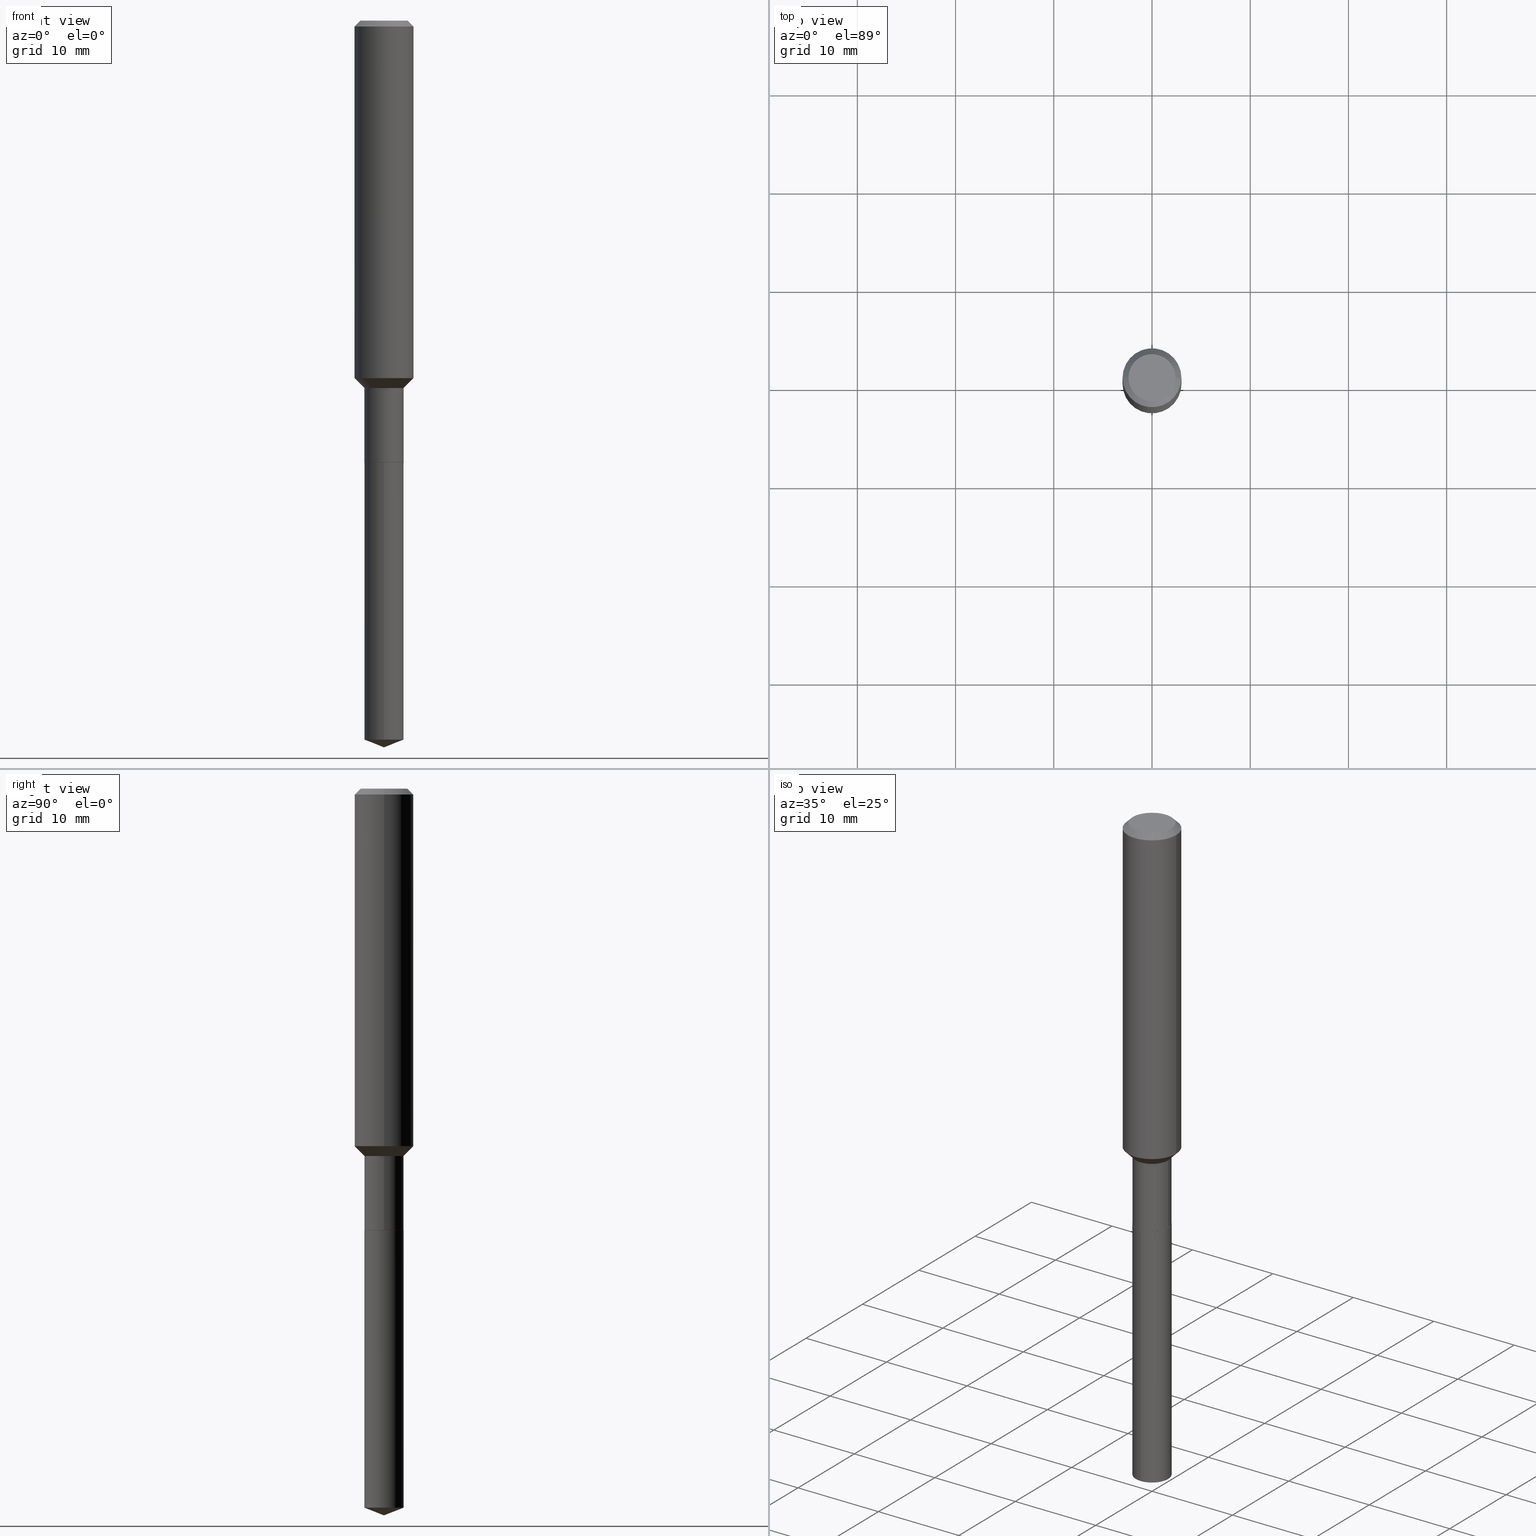
[diagram: canonical four-view strip — front | top / right | iso, engineering-drawing reading convention]
A machine part, canonical four-view strip (front | top / right | iso — engineering-drawing reading convention). The complete STEP part file that produces these views, byte-faithful:
ISO-10303-21;
HEADER;
FILE_DESCRIPTION (( 'STEP AP203' ),
    '1' );
FILE_NAME ('66513.STEP',
    '2024-04-25T00:03:08',
    ( '' ),
    ( '' ),
    'SwSTEP 2.0',
    'SolidWorks 2023',
    '' );
FILE_SCHEMA (( 'CONFIG_CONTROL_DESIGN' ));
ENDSEC;

DATA;
#1 = APPROVAL_PERSON_ORGANIZATION ( #406, #435, #297 ) ;
#2 = VERTEX_POINT ( 'NONE', #315 ) ;
#3 = LINE ( 'NONE', #5, #242 ) ;
#4 = EDGE_LOOP ( 'NONE', ( #385, #423, #289 ) ) ;
#5 = CARTESIAN_POINT ( 'NONE',  ( 0.1181000000000000799, -8.246878922347486570E-16, 5.758764772215004644E-30 ) ) ;
#6 = VERTEX_POINT ( 'NONE', #11 ) ;
#7 = ORIENTED_EDGE ( 'NONE', *, *, #130, .F. ) ;
#8 = AXIS2_PLACEMENT_3D ( 'NONE', #290, #367, #366 ) ;
#9 = VECTOR ( 'NONE', #308, 39.37007874015748143 ) ;
#10 = DIRECTION ( 'NONE',  ( 1.000000000000000000, -6.982962677686270655E-15, 0.000000000000000000 ) ) ;
#11 = CARTESIAN_POINT ( 'NONE',  ( -5.499083108677227426E-16, -0.07875000000001002032, -2.881979550045322025 ) ) ;
#12 = CARTESIAN_POINT ( 'NONE',  ( 4.331658896395732410E-29, -6.184460895492863090E-15, -1.771299999999999653 ) ) ;
#13 = PERSON_AND_ORGANIZATION ( #257, #213 ) ;
#14 = FACE_OUTER_BOUND ( 'NONE', #298, .T. ) ;
#15 = FACE_OUTER_BOUND ( 'NONE', #4, .T. ) ;
#16 = APPROVAL_PERSON_ORGANIZATION ( #206, #220, #357 ) ;
#17 = FACE_OUTER_BOUND ( 'NONE', #81, .T. ) ;
#18 = DIMENSIONAL_EXPONENTS ( 1.000000000000000000, 0.000000000000000000, 0.000000000000000000, 0.000000000000000000, 0.000000000000000000, 0.000000000000000000, 0.000000000000000000 ) ;
#19 = AXIS2_PLACEMENT_3D ( 'NONE', #82, #240, #388 ) ;
#20 = ORIENTED_EDGE ( 'NONE', *, *, #480, .T. ) ;
#21 = FACE_OUTER_BOUND ( 'NONE', #188, .T. ) ;
#22 = EDGE_CURVE ( 'NONE', #84, #65, #160, .T. ) ;
#23 = CARTESIAN_POINT ( 'NONE',  ( -0.1180999999999999966, 7.422191030112725094E-16, -0.02362000000000014435 ) ) ;
#24 = PRODUCT_RELATED_PRODUCT_CATEGORY ( 'detail', '', ( #413 ) ) ;
#25 =( CONVERSION_BASED_UNIT ( 'INCH', #217 ) LENGTH_UNIT ( ) NAMED_UNIT ( #18 ) );
#26 = CARTESIAN_POINT ( 'NONE',  ( 0.1180999999999999966, -9.071566814582237199E-16, -0.02362000000000014435 ) ) ;
#27 = AXIS2_PLACEMENT_3D ( 'NONE', #473, #318, #391 ) ;
#28 = DIRECTION ( 'NONE',  ( -6.982962677686264344E-15, -1.000000000000000000, 3.469013325287953293E-15 ) ) ;
#29 = EDGE_LOOP ( 'NONE', ( #345, #402, #464, #7 ) ) ;
#30 = DIRECTION ( 'NONE',  ( -2.445468806185136597E-29, 3.491481338843145583E-15, 1.000000000000000000 ) ) ;
#31 = VERTEX_POINT ( 'NONE', #387 ) ;
#32 = CARTESIAN_POINT ( 'NONE',  ( 0.07874999999999997280, -5.499083108677933457E-16, 3.839989210939298316E-30 ) ) ;
#33 = ADVANCED_FACE ( 'NONE', ( #46 ), #155, .F. ) ;
#34 = EDGE_LOOP ( 'NONE', ( #365, #376, #404, #58 ) ) ;
#35 = CARTESIAN_POINT ( 'NONE',  ( -0.1180999999999999966, -1.703817089993642645E-15, -0.02362000000000014435 ) ) ;
#36 = CLOSED_SHELL ( 'NONE', ( #157, #39, #463, #449, #119, #171, #194, #92, #63, #254, #33, #429 ) ) ;
#37 = VERTEX_POINT ( 'NONE', #124 ) ;
#38 = CARTESIAN_POINT ( 'NONE',  ( 4.330436161992639608E-29, -6.182715154823442375E-15, -1.770799999999999930 ) ) ;
#39 = ADVANCED_FACE ( 'NONE', ( #279 ), #379, .T. ) ;
#40 = DIRECTION ( 'NONE',  ( -2.445392125264201489E-29, 3.491591150286331850E-15, 1.000000000000000000 ) ) ;
#41 = SECURITY_CLASSIFICATION_LEVEL ( 'unclassified' ) ;
#42 = CC_DESIGN_PERSON_AND_ORGANIZATION_ASSIGNMENT ( #451, #51, ( #169 ) ) ;
#43 = ORIENTED_EDGE ( 'NONE', *, *, #443, .F. ) ;
#44 = CARTESIAN_POINT ( 'NONE',  ( -8.915171743640279207E-28, 1.272934080034351403E-13, 36.45707874015747763 ) ) ;
#45 = COORDINATED_UNIVERSAL_TIME_OFFSET ( 5, 0, .BEHIND. ) ;
#46 = FACE_OUTER_BOUND ( 'NONE', #267, .T. ) ;
#47 = LOCAL_TIME ( 20, 3, 8.000000000000000000, #122 ) ;
#48 = DIRECTION ( 'NONE',  ( -2.445468806185136597E-29, 3.491481338843145583E-15, 1.000000000000000000 ) ) ;
#49 = EDGE_CURVE ( 'NONE', #411, #6, #241, .T. ) ;
#50 = CARTESIAN_POINT ( 'NONE',  ( -0.09447999999999998066, 7.009847083995354710E-16, -1.928573779297727792E-17 ) ) ;
#51 = PERSON_AND_ORGANIZATION_ROLE ( 'classification_officer' ) ;
#52 = CARTESIAN_POINT ( 'NONE',  ( 4.716267017698007905E-46, -6.733579360998555036E-32, -1.928573779297252010E-17 ) ) ;
#53 = APPROVAL_PERSON_ORGANIZATION ( #80, #106, #421 ) ;
#54 = EDGE_CURVE ( 'NONE', #71, #100, #389, .T. ) ;
#55 =( LENGTH_UNIT ( ) NAMED_UNIT ( * ) SI_UNIT ( $, .METRE. ) );
#56 = PRODUCT_DEFINITION_FORMATION_WITH_SPECIFIED_SOURCE ( 'ANY', '', #413, .NOT_KNOWN. ) ;
#57 = APPLICATION_PROTOCOL_DEFINITION ( 'international standard', 'config_control_design', 1994, #196 ) ;
#58 = ORIENTED_EDGE ( 'NONE', *, *, #397, .F. ) ;
#59 = CARTESIAN_POINT ( 'NONE',  ( 3.600708270226994361E-29, -5.140857123312645658E-15, -1.472399999999999487 ) ) ;
#60 = CC_DESIGN_PERSON_AND_ORGANIZATION_ASSIGNMENT ( #266, #128, ( #96 ) ) ;
#61 = CARTESIAN_POINT ( 'NONE',  ( 3.600708270226994361E-29, -5.140857123312645658E-15, -1.472399999999999487 ) ) ;
#62 = DIRECTION ( 'NONE',  ( -6.982962677686264344E-15, -1.000000000000000000, 3.469013325287953293E-15 ) ) ;
#63 = ADVANCED_FACE ( 'NONE', ( #14 ), #172, .T. ) ;
#64 = APPROVAL_STATUS ( 'not_yet_approved' ) ;
#65 = VERTEX_POINT ( 'NONE', #204 ) ;
#66 = DIRECTION ( 'NONE',  ( 1.000000000000000000, -6.982962677686267499E-15, 0.000000000000000000 ) ) ;
#67 = CONICAL_SURFACE ( 'NONE', #432, 0.07825000000000000011, 0.7853981633975507526 ) ;
#68 = EDGE_CURVE ( 'NONE', #6, #422, #398, .T. ) ;
#69 = EDGE_LOOP ( 'NONE', ( #255, #373 ) ) ;
#70 = LINE ( 'NONE', #175, #395 ) ;
#71 = VERTEX_POINT ( 'NONE', #50 ) ;
#72 = ORIENTED_EDGE ( 'NONE', *, *, #130, .T. ) ;
#73 = DIRECTION ( 'NONE',  ( -2.445468806185136597E-29, 3.491481338843145583E-15, 1.000000000000000000 ) ) ;
#74 = AXIS2_PLACEMENT_3D ( 'NONE', #284, #90, #111 ) ;
#75 = VECTOR ( 'NONE', #199, 39.37007874015748143 ) ;
#76 = CARTESIAN_POINT ( 'NONE',  ( 4.716267017698007905E-46, -6.733579360998555036E-32, -1.928573779297252010E-17 ) ) ;
#77 = DIRECTION ( 'NONE',  ( 1.000000000000000000, -6.982962677686267499E-15, 0.000000000000000000 ) ) ;
#78 = DATE_TIME_ROLE ( 'classification_date' ) ;
#79 = EDGE_LOOP ( 'NONE', ( #378, #72, #444, #43 ) ) ;
#80 = PERSON_AND_ORGANIZATION ( #257, #213 ) ;
#81 = EDGE_LOOP ( 'NONE', ( #177, #335, #301, #148 ) ) ;
#82 = CARTESIAN_POINT ( 'NONE',  ( 4.331658896395732410E-29, -6.184460895492863090E-15, -1.771299999999999653 ) ) ;
#83 = DATE_AND_TIME ( #162, #47 ) ;
#84 = VERTEX_POINT ( 'NONE', #472 ) ;
#85 = AXIS2_PLACEMENT_3D ( 'NONE', #288, #176, #28 ) ;
#86 = DIRECTION ( 'NONE',  ( 1.000000000000000000, -6.982962677686266711E-15, 4.876176775795936353E-29 ) ) ;
#87 = APPROVAL_STATUS ( 'not_yet_approved' ) ;
#88 = CARTESIAN_POINT ( 'NONE',  ( 0.000000000000000000, 0.000000000000000000, 0.000000000000000000 ) ) ;
#89 = EDGE_CURVE ( 'NONE', #2, #37, #125, .T. ) ;
#90 = DIRECTION ( 'NONE',  ( -2.445392125264201489E-29, 3.491591150286331850E-15, 1.000000000000000000 ) ) ;
#91 = CIRCLE ( 'NONE', #368, 0.1180999999999999966 ) ;
#92 = ADVANCED_FACE ( 'NONE', ( #353 ), #393, .T. ) ;
#93 = ADVANCED_FACE ( 'NONE', ( #15 ), #348, .T. ) ;
#94 = DIRECTION ( 'NONE',  ( 0.000000000000000000, 0.000000000000000000, 1.000000000000000000 ) ) ;
#95 = ORIENTED_EDGE ( 'NONE', *, *, #360, .F. ) ;
#96 = PRODUCT_DEFINITION ( 'UNKNOWN', '', #56, #375 ) ;
#97 = AXIS2_PLACEMENT_3D ( 'NONE', #88, #48, #86 ) ;
#98 = CARTESIAN_POINT ( 'NONE',  ( 5.595524044111494048E-16, 0.07874999999999381106, -1.771300000000000097 ) ) ;
#99 = AXIS2_PLACEMENT_3D ( 'NONE', #121, #73, #230 ) ;
#100 = VERTEX_POINT ( 'NONE', #281 ) ;
#101 = PRODUCT_DEFINITION_SHAPE ( 'NONE', 'NONE',  #96 ) ;
#102 = CARTESIAN_POINT ( 'NONE',  ( 4.331658896395732410E-29, -6.184460895492863090E-15, -1.771299999999999653 ) ) ;
#103 = EDGE_CURVE ( 'NONE', #31, #84, #302, .T. ) ;
#104 = ORIENTED_EDGE ( 'NONE', *, *, #248, .F. ) ;
#105 = DIRECTION ( 'NONE',  ( -2.445468806185136597E-29, 3.491481338843145583E-15, 1.000000000000000000 ) ) ;
#106 = APPROVAL ( #392, 'UNSPECIFIED' ) ;
#107 = CYLINDRICAL_SURFACE ( 'NONE', #285, 0.07875000000000000056 ) ;
#108 = AXIS2_PLACEMENT_3D ( 'NONE', #416, #270, #163 ) ;
#109 = CALENDAR_DATE ( 2024, 24, 4 ) ;
#110 = ORIENTED_EDGE ( 'NONE', *, *, #347, .T. ) ;
#111 = DIRECTION ( 'NONE',  ( -6.982962677686264344E-15, -1.000000000000000000, 3.469013325287953293E-15 ) ) ;
#112 = DIRECTION ( 'NONE',  ( -6.982962677686264344E-15, -1.000000000000000000, 6.938026650575906587E-15 ) ) ;
#113 = ORIENTED_EDGE ( 'NONE', *, *, #314, .F. ) ;
#114 = DIRECTION ( 'NONE',  ( -2.445468806185136597E-29, 3.491481338843145583E-15, 1.000000000000000000 ) ) ;
#115 = AXIS2_PLACEMENT_3D ( 'NONE', #437, #482, #442 ) ;
#116 = CIRCLE ( 'NONE', #475, 0.1180999999999999966 ) ;
#117 = ORIENTED_EDGE ( 'NONE', *, *, #443, .T. ) ;
#118 = LINE ( 'NONE', #351, #9 ) ;
#119 = ADVANCED_FACE ( 'NONE', ( #469 ), #428, .T. ) ;
#120 = ORIENTED_EDGE ( 'NONE', *, *, #278, .T. ) ;
#121 = CARTESIAN_POINT ( 'NONE',  ( 4.330436161992639608E-29, -6.182715154823442375E-15, -1.770799999999999930 ) ) ;
#122 = COORDINATED_UNIVERSAL_TIME_OFFSET ( 5, 0, .BEHIND. ) ;
#123 = EDGE_CURVE ( 'NONE', #100, #71, #191, .T. ) ;
#124 = CARTESIAN_POINT ( 'NONE',  ( -0.07874999999999995892, -5.102233734656965609E-15, -1.472399999999999487 ) ) ;
#125 = CIRCLE ( 'NONE', #27, 0.07874999999999995892 ) ;
#126 = CARTESIAN_POINT ( 'NONE',  ( 4.331658896395732410E-29, -6.184460895492863090E-15, -1.771299999999999653 ) ) ;
#127 = CC_DESIGN_APPROVAL ( #220, ( #56 ) ) ;
#128 = PERSON_AND_ORGANIZATION_ROLE ( 'creator' ) ;
#129 = DIRECTION ( 'NONE',  ( -2.445468806185136597E-29, 3.491481338843145583E-15, 1.000000000000000000 ) ) ;
#130 = EDGE_CURVE ( 'NONE', #486, #446, #150, .T. ) ;
#131 = CARTESIAN_POINT ( 'NONE',  ( -5.499083108677500569E-16, -0.07875000000000617617, -1.771299999999999430 ) ) ;
#132 = CC_DESIGN_PERSON_AND_ORGANIZATION_ASSIGNMENT ( #300, #159, ( #56 ) ) ;
#133 = VECTOR ( 'NONE', #143, 39.37007874015748143 ) ;
#134 = AXIS2_PLACEMENT_3D ( 'NONE', #12, #164, #77 ) ;
#135 = ADVANCED_FACE ( 'NONE', ( #17 ), #320, .T. ) ;
#136 = FACE_OUTER_BOUND ( 'NONE', #195, .T. ) ;
#137 = ORIENTED_EDGE ( 'NONE', *, *, #341, .T. ) ;
#138 = DIRECTION ( 'NONE',  ( -2.445468806185136877E-29, 3.491481338843145188E-15, 1.000000000000000000 ) ) ;
#139 = VERTEX_POINT ( 'NONE', #98 ) ;
#140 = AXIS2_PLACEMENT_3D ( 'NONE', #76, #381, #305 ) ;
#141 = DIRECTION ( 'NONE',  ( -2.445468806185136597E-29, 3.491481338843145583E-15, 1.000000000000000000 ) ) ;
#142 = CONICAL_SURFACE ( 'NONE', #390, 99.94676754583717582, 1.195550537616109965 ) ;
#143 = DIRECTION ( 'NONE',  ( -0.7071067811865459074, 2.468850131082239706E-15, -0.7071067811865492381 ) ) ;
#144 = ADVANCED_FACE ( 'NONE', ( #214 ), #107, .T. ) ;
#145 = ORIENTED_EDGE ( 'NONE', *, *, #347, .F. ) ;
#146 = LINE ( 'NONE', #299, #158 ) ;
#147 = APPROVAL_DATE_TIME ( #282, #220 ) ;
#148 = ORIENTED_EDGE ( 'NONE', *, *, #68, .F. ) ;
#149 = LINE ( 'NONE', #32, #474 ) ;
#150 = CIRCLE ( 'NONE', #231, 0.1181000000000001632 ) ;
#151 = ORIENTED_EDGE ( 'NONE', *, *, #420, .F. ) ;
#152 = CARTESIAN_POINT ( 'NONE',  ( -5.499083108677500569E-16, -0.07875000000000617617, -1.771299999999999430 ) ) ;
#153 = ORIENTED_EDGE ( 'NONE', *, *, #358, .F. ) ;
#154 = CARTESIAN_POINT ( 'NONE',  ( -0.1181000000000000799, 8.391509709326788873E-16, -5.809262341591047988E-30 ) ) ;
#155 = PLANE ( 'NONE',  #108 ) ;
#156 = DIRECTION ( 'NONE',  ( 6.611014441532042923E-15, 0.9304175679820235745, 0.3665012267242994115 ) ) ;
#157 = ADVANCED_FACE ( 'NONE', ( #260 ), #67, .T. ) ;
#158 = VECTOR ( 'NONE', #447, 39.37007874015748143 ) ;
#159 = PERSON_AND_ORGANIZATION_ROLE ( 'creator' ) ;
#160 = LINE ( 'NONE', #456, #263 ) ;
#161 = DIRECTION ( 'NONE',  ( -2.445468806185136877E-29, 3.491481338843145188E-15, 1.000000000000000000 ) ) ;
#162 = CALENDAR_DATE ( 2024, 24, 4 ) ;
#163 = DIRECTION ( 'NONE',  ( 1.000000000000000000, -6.982962677686265922E-15, 4.876176775795935793E-29 ) ) ;
#164 = DIRECTION ( 'NONE',  ( -2.445468806185136597E-29, 3.491481338843145583E-15, 1.000000000000000000 ) ) ;
#165 = DIRECTION ( 'NONE',  ( -2.445392125264201489E-29, 3.491591150286331850E-15, 1.000000000000000000 ) ) ;
#166 = CLOSED_SHELL ( 'NONE', ( #135, #93, #331, #144, #235 ) ) ;
#167 = AXIS2_PLACEMENT_3D ( 'NONE', #244, #165, #205 ) ;
#168 = DIRECTION ( 'NONE',  ( -2.445468806185136597E-29, 3.491481338843145583E-15, 1.000000000000000000 ) ) ;
#169 = SECURITY_CLASSIFICATION ( '', '', #41 ) ;
#170 = DIRECTION ( 'NONE',  ( -2.445468806185136597E-29, 3.491481338843145583E-15, 1.000000000000000000 ) ) ;
#171 = ADVANCED_FACE ( 'NONE', ( #219 ), #253, .T. ) ;
#172 = CONICAL_SURFACE ( 'NONE', #338, 0.1180999999999999966, 0.7853981633974459475 ) ;
#173 = VECTOR ( 'NONE', #156, 39.37007874015748143 ) ;
#174 = CARTESIAN_POINT ( 'NONE',  ( 0.1181000000000001632, -5.828155224863917251E-15, -1.433049999999999713 ) ) ;
#175 = CARTESIAN_POINT ( 'NONE',  ( -0.07874999999999995892, -4.581304718901566856E-15, -1.472399999999999487 ) ) ;
#176 = DIRECTION ( 'NONE',  ( -2.445392125264201489E-29, 3.491591150286331850E-15, 1.000000000000000000 ) ) ;
#177 = ORIENTED_EDGE ( 'NONE', *, *, #245, .T. ) ;
#178 = CARTESIAN_POINT ( 'NONE',  ( 0.07874999999999995892, -5.690765434180439003E-15, -1.472399999999999487 ) ) ;
#179 = EDGE_CURVE ( 'NONE', #37, #2, #427, .T. ) ;
#180 = MECHANICAL_CONTEXT ( 'NONE', #425, 'mechanical' ) ;
#181 = VERTEX_POINT ( 'NONE', #268 ) ;
#182 = CIRCLE ( 'NONE', #249, 0.07875000000000000056 ) ;
#183 = DIRECTION ( 'NONE',  ( 1.000000000000000000, -6.982962677686265922E-15, 0.000000000000000000 ) ) ;
#184 = AXIS2_PLACEMENT_3D ( 'NONE', #187, #212, #369 ) ;
#185 = ORIENTED_EDGE ( 'NONE', *, *, #49, .T. ) ;
#186 = DIRECTION ( 'NONE',  ( -6.982962677686264344E-15, -1.000000000000000000, 3.469013325287953293E-15 ) ) ;
#187 = CARTESIAN_POINT ( 'NONE',  ( 0.000000000000000000, 0.000000000000000000, 0.000000000000000000 ) ) ;
#188 = EDGE_LOOP ( 'NONE', ( #350, #330, #232 ) ) ;
#189 = CARTESIAN_POINT ( 'NONE',  ( 3.600708270226994361E-29, -5.140857123312645658E-15, -1.472399999999999487 ) ) ;
#190 = DIRECTION ( 'NONE',  ( 2.445468806185136597E-29, -3.491481338843145583E-15, -1.000000000000000000 ) ) ;
#191 = CIRCLE ( 'NONE', #438, 0.09447999999999998066 ) ;
#192 = ORIENTED_EDGE ( 'NONE', *, *, #275, .T. ) ;
#193 = LINE ( 'NONE', #154, #370 ) ;
#194 = ADVANCED_FACE ( 'NONE', ( #364 ), #208, .T. ) ;
#195 = EDGE_LOOP ( 'NONE', ( #110, #458, #441, #95 ) ) ;
#196 = APPLICATION_CONTEXT ( 'configuration controlled 3d designs of mechanical parts and assemblies' ) ;
#197 = CALENDAR_DATE ( 2024, 24, 4 ) ;
#198 = ORIENTED_EDGE ( 'NONE', *, *, #434, .T. ) ;
#199 = DIRECTION ( 'NONE',  ( -0.7071067811866199593, 7.493145998870616062E-15, 0.7071067811864750752 ) ) ;
#200 = VECTOR ( 'NONE', #138, 39.37007874015748143 ) ;
#201 = CALENDAR_DATE ( 2024, 24, 4 ) ;
#202 = UNCERTAINTY_MEASURE_WITH_UNIT (LENGTH_MEASURE( 1.000000000000000082E-05 ), #25, 'distance_accuracy_value', 'NONE');
#203 = ORIENTED_EDGE ( 'NONE', *, *, #210, .F. ) ;
#204 = CARTESIAN_POINT ( 'NONE',  ( 0.07875000000000000056, -6.732623465691234932E-15, -1.770799999999999930 ) ) ;
#205 = DIRECTION ( 'NONE',  ( -6.982962677686265922E-15, -1.000000000000000000, 3.498627837350102041E-15 ) ) ;
#206 = PERSON_AND_ORGANIZATION ( #257, #213 ) ;
#207 = CC_DESIGN_PERSON_AND_ORGANIZATION_ASSIGNMENT ( #328, #258, ( #413 ) ) ;
#208 = CONICAL_SURFACE ( 'NONE', #408, 0.07874999999999995892, 0.7853981633974516097 ) ;
#209 = DIRECTION ( 'NONE',  ( -2.445468806185136597E-29, 3.491481338843145583E-15, 1.000000000000000000 ) ) ;
#210 = EDGE_CURVE ( 'NONE', #71, #414, #332, .T. ) ;
#211 = AXIS2_PLACEMENT_3D ( 'NONE', #59, #407, #183 ) ;
#212 = DIRECTION ( 'NONE',  ( -2.445468806185136597E-29, 3.491481338843145583E-15, 1.000000000000000000 ) ) ;
#213 = ORGANIZATION ( 'UNSPECIFIED', 'UNSPECIFIED', '' ) ;
#214 = FACE_OUTER_BOUND ( 'NONE', #252, .T. ) ;
#215 = ORIENTED_EDGE ( 'NONE', *, *, #397, .T. ) ;
#216 = FACE_OUTER_BOUND ( 'NONE', #342, .T. ) ;
#217 = LENGTH_MEASURE_WITH_UNIT ( LENGTH_MEASURE( 0.02539999999999999897 ), #55 );
#218 = ORIENTED_EDGE ( 'NONE', *, *, #314, .T. ) ;
#219 = FACE_OUTER_BOUND ( 'NONE', #477, .T. ) ;
#220 = APPROVAL ( #87, 'UNSPECIFIED' ) ;
#221 = ORIENTED_EDGE ( 'NONE', *, *, #321, .T. ) ;
#222 = DIRECTION ( 'NONE',  ( -2.445468806185136597E-29, 3.491481338843145583E-15, 1.000000000000000000 ) ) ;
#223 =( GEOMETRIC_REPRESENTATION_CONTEXT ( 3 ) GLOBAL_UNCERTAINTY_ASSIGNED_CONTEXT ( ( #202 ) ) GLOBAL_UNIT_ASSIGNED_CONTEXT ( ( #25, #409, #488 ) ) REPRESENTATION_CONTEXT ( 'NONE', 'WORKASPACE' ) );
#224 = FACE_OUTER_BOUND ( 'NONE', #236, .T. ) ;
#225 = CARTESIAN_POINT ( 'NONE',  ( -0.07874999999999997280, 5.595524044110787031E-16, -3.873661383575737091E-30 ) ) ;
#226 = ORIENTED_EDGE ( 'NONE', *, *, #275, .F. ) ;
#227 = CARTESIAN_POINT ( 'NONE',  ( 7.123427260894619081E-29, -1.017100502078408483E-14, -2.912999999999999812 ) ) ;
#228 = CC_DESIGN_PERSON_AND_ORGANIZATION_ASSIGNMENT ( #13, #383, ( #56 ) ) ;
#229 = ORIENTED_EDGE ( 'NONE', *, *, #287, .T. ) ;
#230 = DIRECTION ( 'NONE',  ( 1.000000000000000000, -6.982962677686261977E-15, 0.000000000000000000 ) ) ;
#231 = AXIS2_PLACEMENT_3D ( 'NONE', #247, #209, #359 ) ;
#232 = ORIENTED_EDGE ( 'NONE', *, *, #49, .F. ) ;
#233 = CARTESIAN_POINT ( 'NONE',  ( 3.504479072703608597E-29, -5.003467332629168988E-15, -1.433049999999999713 ) ) ;
#234 = DATE_TIME_ROLE ( 'creation_date' ) ;
#235 = ADVANCED_FACE ( 'NONE', ( #216 ), #478, .F. ) ;
#236 = EDGE_LOOP ( 'NONE', ( #307, #269, #145, #104 ) ) ;
#237 = DIRECTION ( 'NONE',  ( -2.445392125264201489E-29, 3.491591150286331850E-15, 1.000000000000000000 ) ) ;
#238 = APPROVAL_DATE_TIME ( #246, #106 ) ;
#239 = EDGE_LOOP ( 'NONE', ( #454, #229, #120, #203 ) ) ;
#240 = DIRECTION ( 'NONE',  ( -2.445468806185136597E-29, 3.491481338843145583E-15, 1.000000000000000000 ) ) ;
#241 = CIRCLE ( 'NONE', #310, 0.07875000000000000056 ) ;
#242 = VECTOR ( 'NONE', #161, 39.37007874015748143 ) ;
#243 = DIRECTION ( 'NONE',  ( -2.445392125264201489E-29, 3.491591150286331850E-15, 1.000000000000000000 ) ) ;
#244 = CARTESIAN_POINT ( 'NONE',  ( -8.915171743640279207E-28, 1.272934080034351403E-13, 36.45707874015747763 ) ) ;
#245 = EDGE_CURVE ( 'NONE', #6, #411, #490, .T. ) ;
#246 = DATE_AND_TIME ( #197, #400 ) ;
#247 = CARTESIAN_POINT ( 'NONE',  ( 3.504479072703608597E-29, -5.003467332629168988E-15, -1.433049999999999713 ) ) ;
#248 = EDGE_CURVE ( 'NONE', #2, #446, #445, .T. ) ;
#249 = AXIS2_PLACEMENT_3D ( 'NONE', #102, #405, #186 ) ;
#250 = DIRECTION ( 'NONE',  ( -1.000000000000000000, 6.982962677686266711E-15, 0.000000000000000000 ) ) ;
#251 = AXIS2_PLACEMENT_3D ( 'NONE', #426, #190, #337 ) ;
#252 = EDGE_LOOP ( 'NONE', ( #151, #185, #452, #226 ) ) ;
#253 = CYLINDRICAL_SURFACE ( 'NONE', #346, 0.07874999999999997280 ) ;
#254 = ADVANCED_FACE ( 'NONE', ( #326 ), #256, .F. ) ;
#255 = ORIENTED_EDGE ( 'NONE', *, *, #54, .T. ) ;
#256 = PLANE ( 'NONE',  #115 ) ;
#257 = PERSON ( 'UNSPECIFIED', 'UNSPECIFIED', 'UNSPECIFIED', ('UNSPECIFIED'), ('UNSPECIFIED'), ('UNSPECIFIED') ) ;
#258 = PERSON_AND_ORGANIZATION_ROLE ( 'design_owner' ) ;
#259 = ORIENTED_EDGE ( 'NONE', *, *, #210, .T. ) ;
#260 = FACE_OUTER_BOUND ( 'NONE', #371, .T. ) ;
#261 = EDGE_CURVE ( 'NONE', #37, #486, #70, .T. ) ;
#262 = EDGE_LOOP ( 'NONE', ( #312, #218, #292, #343 ) ) ;
#263 = VECTOR ( 'NONE', #467, 39.37007874015748143 ) ;
#264 = AXIS2_PLACEMENT_3D ( 'NONE', #233, #340, #10 ) ;
#265 = CARTESIAN_POINT ( 'NONE',  ( 0.000000000000000000, 0.000000000000000000, 0.000000000000000000 ) ) ;
#266 = PERSON_AND_ORGANIZATION ( #257, #213 ) ;
#267 = EDGE_LOOP ( 'NONE', ( #273, #295 ) ) ;
#268 = CARTESIAN_POINT ( 'NONE',  ( -0.07875000000000000056, -5.102233734656965609E-15, -1.770799999999999930 ) ) ;
#269 = ORIENTED_EDGE ( 'NONE', *, *, #261, .T. ) ;
#270 = DIRECTION ( 'NONE',  ( -2.438088387897960049E-29, 3.491481338843145188E-15, 1.000000000000000000 ) ) ;
#271 = CARTESIAN_POINT ( 'NONE',  ( 7.123701292773481033E-29, -1.017061600276545319E-14, -2.912999999999999812 ) ) ;
#272 = AXIS2_PLACEMENT_3D ( 'NONE', #484, #487, #296 ) ;
#273 = ORIENTED_EDGE ( 'NONE', *, *, #434, .F. ) ;
#274 = DIRECTION ( 'NONE',  ( 1.000000000000000000, -6.982962677686261977E-15, 0.000000000000000000 ) ) ;
#275 = EDGE_CURVE ( 'NONE', #139, #422, #182, .T. ) ;
#276 = VERTEX_POINT ( 'NONE', #26 ) ;
#277 = DIRECTION ( 'NONE',  ( -2.445468806185136877E-29, 3.491481338843145188E-15, 1.000000000000000000 ) ) ;
#278 = EDGE_CURVE ( 'NONE', #276, #414, #91, .T. ) ;
#279 = FACE_OUTER_BOUND ( 'NONE', #239, .T. ) ;
#280 = LOCAL_TIME ( 20, 3, 8.000000000000000000, #363 ) ;
#281 = CARTESIAN_POINT ( 'NONE',  ( 0.09447999999999998066, -7.704367267948738690E-16, -1.928573779296752193E-17 ) ) ;
#282 = DATE_AND_TIME ( #201, #483 ) ;
#283 = DIRECTION ( 'NONE',  ( 1.000000000000000000, -6.982962677686267499E-15, 4.876176775795935793E-29 ) ) ;
#284 = CARTESIAN_POINT ( 'NONE',  ( 4.331658896395732410E-29, -6.184460895492863090E-15, -1.771299999999999653 ) ) ;
#285 = AXIS2_PLACEMENT_3D ( 'NONE', #324, #403, #62 ) ;
#286 = CONICAL_SURFACE ( 'NONE', #303, 0.07874999999999995892, 0.7853981633974516097 ) ;
#287 = EDGE_CURVE ( 'NONE', #100, #276, #146, .T. ) ;
#288 = CARTESIAN_POINT ( 'NONE',  ( 4.331658896395732410E-29, -6.184460895492863090E-15, -1.771299999999999653 ) ) ;
#289 = ORIENTED_EDGE ( 'NONE', *, *, #245, .F. ) ;
#290 = CARTESIAN_POINT ( 'NONE',  ( 7.047705921768549734E-29, -1.006249978323511518E-14, -2.881979550045322469 ) ) ;
#291 = CC_DESIGN_APPROVAL ( #106, ( #169 ) ) ;
#292 = ORIENTED_EDGE ( 'NONE', *, *, #89, .F. ) ;
#293 = DIRECTION ( 'NONE',  ( 0.7071067811865497932, -2.468850131082280332E-15, 0.7071067811865451302 ) ) ;
#294 = CARTESIAN_POINT ( 'NONE',  ( 0.000000000000000000, 0.000000000000000000, 0.000000000000000000 ) ) ;
#295 = ORIENTED_EDGE ( 'NONE', *, *, #103, .F. ) ;
#296 = DIRECTION ( 'NONE',  ( 6.982962677686265922E-15, 1.000000000000000000, -3.491591150286331850E-15 ) ) ;
#297 = APPROVAL_ROLE ( '' ) ;
#298 = EDGE_LOOP ( 'NONE', ( #436, #309, #259, #117 ) ) ;
#299 = CARTESIAN_POINT ( 'NONE',  ( 0.1180999999999999966, -8.926936027602933910E-16, -0.02362000000000014435 ) ) ;
#300 = PERSON_AND_ORGANIZATION ( #257, #213 ) ;
#301 = ORIENTED_EDGE ( 'NONE', *, *, #480, .F. ) ;
#302 = CIRCLE ( 'NONE', #459, 0.07825000000000000011 ) ;
#303 = AXIS2_PLACEMENT_3D ( 'NONE', #61, #322, #476 ) ;
#304 = DIRECTION ( 'NONE',  ( -2.445468806185136877E-29, 3.491481338843145188E-15, 1.000000000000000000 ) ) ;
#305 = DIRECTION ( 'NONE',  ( 1.000000000000000000, -6.982962677686267499E-15, 4.875432709231658792E-29 ) ) ;
#306 = DIRECTION ( 'NONE',  ( -6.982962677686265922E-15, -1.000000000000000000, 3.498627837350102041E-15 ) ) ;
#307 = ORIENTED_EDGE ( 'NONE', *, *, #89, .T. ) ;
#308 = DIRECTION ( 'NONE',  ( -2.445392125264201489E-29, 3.491591150286331850E-15, 1.000000000000000000 ) ) ;
#309 = ORIENTED_EDGE ( 'NONE', *, *, #54, .F. ) ;
#310 = AXIS2_PLACEMENT_3D ( 'NONE', #418, #40, #112 ) ;
#311 = COORDINATED_UNIVERSAL_TIME_OFFSET ( 5, 0, .BEHIND. ) ;
#312 = ORIENTED_EDGE ( 'NONE', *, *, #358, .T. ) ;
#313 = LINE ( 'NONE', #316, #75 ) ;
#314 = EDGE_CURVE ( 'NONE', #181, #37, #412, .T. ) ;
#315 = CARTESIAN_POINT ( 'NONE',  ( 0.07874999999999995892, -5.690765434180439003E-15, -1.472399999999999487 ) ) ;
#316 = CARTESIAN_POINT ( 'NONE',  ( -0.07825000000000000011, -5.628461204760584398E-15, -1.771299999999999653 ) ) ;
#317 = CC_DESIGN_DATE_AND_TIME_ASSIGNMENT ( #352, #78, ( #169 ) ) ;
#318 = DIRECTION ( 'NONE',  ( -2.445468806185136597E-29, 3.491481338843145583E-15, 1.000000000000000000 ) ) ;
#319 = DIRECTION ( 'NONE',  ( 2.445468806185136597E-29, -3.491481338843145583E-15, -1.000000000000000000 ) ) ;
#320 = CYLINDRICAL_SURFACE ( 'NONE', #74, 0.07875000000000000056 ) ;
#321 = EDGE_CURVE ( 'NONE', #65, #2, #149, .T. ) ;
#322 = DIRECTION ( 'NONE',  ( -2.445468806185136597E-29, 3.491481338843145583E-15, 1.000000000000000000 ) ) ;
#323 = VERTEX_POINT ( 'NONE', #453 ) ;
#324 = CARTESIAN_POINT ( 'NONE',  ( 4.331658896395732410E-29, -6.184460895492863090E-15, -1.771299999999999653 ) ) ;
#325 = ORIENTED_EDGE ( 'NONE', *, *, #22, .F. ) ;
#326 = FACE_OUTER_BOUND ( 'NONE', #69, .T. ) ;
#327 = VECTOR ( 'NONE', #293, 39.37007874015748854 ) ;
#328 = PERSON_AND_ORGANIZATION ( #257, #213 ) ;
#329 = CIRCLE ( 'NONE', #264, 0.1181000000000001632 ) ;
#330 = ORIENTED_EDGE ( 'NONE', *, *, #384, .T. ) ;
#331 = ADVANCED_FACE ( 'NONE', ( #21 ), #142, .T. ) ;
#332 = LINE ( 'NONE', #23, #133 ) ;
#333 = ORIENTED_EDGE ( 'NONE', *, *, #179, .F. ) ;
#334 = DIRECTION ( 'NONE',  ( 1.000000000000000000, -6.982962677686266711E-15, 0.000000000000000000 ) ) ;
#335 = ORIENTED_EDGE ( 'NONE', *, *, #420, .T. ) ;
#336 = DIRECTION ( 'NONE',  ( 1.000000000000000000, -6.982962677686265922E-15, 0.000000000000000000 ) ) ;
#337 = DIRECTION ( 'NONE',  ( -1.000000000000000000, 6.982962677686266711E-15, 0.000000000000000000 ) ) ;
#338 = AXIS2_PLACEMENT_3D ( 'NONE', #394, #319, #250 ) ;
#339 = AXIS2_PLACEMENT_3D ( 'NONE', #38, #468, #274 ) ;
#340 = DIRECTION ( 'NONE',  ( -2.445468806185136597E-29, 3.491481338843145583E-15, 1.000000000000000000 ) ) ;
#341 = EDGE_CURVE ( 'NONE', #31, #181, #313, .T. ) ;
#342 = EDGE_LOOP ( 'NONE', ( #20, #192 ) ) ;
#343 = ORIENTED_EDGE ( 'NONE', *, *, #321, .F. ) ;
#344 = SHAPE_DEFINITION_REPRESENTATION ( #101, #460 ) ;
#345 = ORIENTED_EDGE ( 'NONE', *, *, #261, .F. ) ;
#346 = AXIS2_PLACEMENT_3D ( 'NONE', #265, #222, #372 ) ;
#347 = EDGE_CURVE ( 'NONE', #446, #486, #329, .T. ) ;
#348 = CONICAL_SURFACE ( 'NONE', #167, 99.94676754583717582, 1.195550537616109965 ) ;
#349 = CC_DESIGN_SECURITY_CLASSIFICATION ( #169, ( #56 ) ) ;
#350 = ORIENTED_EDGE ( 'NONE', *, *, #377, .F. ) ;
#351 = CARTESIAN_POINT ( 'NONE',  ( 5.595524044111220905E-16, 0.07874999999999381106, -1.771300000000000097 ) ) ;
#352 = DATE_AND_TIME ( #109, #439 ) ;
#353 = FACE_OUTER_BOUND ( 'NONE', #79, .T. ) ;
#354 = APPROVAL_DATE_TIME ( #470, #435 ) ;
#355 = CARTESIAN_POINT ( 'NONE',  ( 0.000000000000000000, 0.000000000000000000, 0.000000000000000000 ) ) ;
#356 = CIRCLE ( 'NONE', #134, 0.07825000000000000011 ) ;
#357 = APPROVAL_ROLE ( '' ) ;
#358 = EDGE_CURVE ( 'NONE', #65, #181, #362, .T. ) ;
#359 = DIRECTION ( 'NONE',  ( 1.000000000000000000, -6.982962677686270655E-15, 0.000000000000000000 ) ) ;
#360 = EDGE_CURVE ( 'NONE', #446, #276, #3, .T. ) ;
#361 = AXIS2_PLACEMENT_3D ( 'NONE', #355, #168, #283 ) ;
#362 = CIRCLE ( 'NONE', #339, 0.07875000000000000056 ) ;
#363 = COORDINATED_UNIVERSAL_TIME_OFFSET ( 5, 0, .BEHIND. ) ;
#364 = FACE_OUTER_BOUND ( 'NONE', #29, .T. ) ;
#365 = ORIENTED_EDGE ( 'NONE', *, *, #341, .F. ) ;
#366 = DIRECTION ( 'NONE',  ( -6.982962677686264344E-15, -1.000000000000000000, 6.938026650575906587E-15 ) ) ;
#367 = DIRECTION ( 'NONE',  ( -2.445392125264201489E-29, 3.491591150286331850E-15, 1.000000000000000000 ) ) ;
#368 = AXIS2_PLACEMENT_3D ( 'NONE', #415, #30, #334 ) ;
#369 = DIRECTION ( 'NONE',  ( 1.000000000000000000, -6.982962677686266711E-15, 4.876176775795936353E-29 ) ) ;
#370 = VECTOR ( 'NONE', #277, 39.37007874015748143 ) ;
#371 = EDGE_LOOP ( 'NONE', ( #198, #137, #153, #325 ) ) ;
#372 = DIRECTION ( 'NONE',  ( 1.000000000000000000, -6.982962677686267499E-15, 4.876176775795935793E-29 ) ) ;
#373 = ORIENTED_EDGE ( 'NONE', *, *, #123, .T. ) ;
#374 = CARTESIAN_POINT ( 'NONE',  ( 4.331658896395732410E-29, -6.184460895492863090E-15, -1.771299999999999653 ) ) ;
#375 = DESIGN_CONTEXT ( 'detailed design', #196, 'design' ) ;
#376 = ORIENTED_EDGE ( 'NONE', *, *, #103, .T. ) ;
#377 = EDGE_CURVE ( 'NONE', #323, #411, #455, .T. ) ;
#378 = ORIENTED_EDGE ( 'NONE', *, *, #399, .F. ) ;
#379 = CONICAL_SURFACE ( 'NONE', #251, 0.1180999999999999966, 0.7853981633974459475 ) ;
#380 = CIRCLE ( 'NONE', #85, 0.07875000000000000056 ) ;
#381 = DIRECTION ( 'NONE',  ( -2.445468806185136597E-29, 3.491481338843145583E-15, 1.000000000000000000 ) ) ;
#382 = DIRECTION ( 'NONE',  ( 1.000000000000000000, -6.982962677686266711E-15, 0.000000000000000000 ) ) ;
#383 = PERSON_AND_ORGANIZATION_ROLE ( 'design_supplier' ) ;
#384 = EDGE_CURVE ( 'NONE', #323, #6, #462, .T. ) ;
#385 = ORIENTED_EDGE ( 'NONE', *, *, #384, .F. ) ;
#386 = CALENDAR_DATE ( 2024, 24, 4 ) ;
#387 = CARTESIAN_POINT ( 'NONE',  ( -0.07825000000000000011, -5.625811977586474774E-15, -1.771299999999999653 ) ) ;
#388 = DIRECTION ( 'NONE',  ( 1.000000000000000000, -6.982962677686267499E-15, 0.000000000000000000 ) ) ;
#389 = CIRCLE ( 'NONE', #140, 0.09447999999999998066 ) ;
#390 = AXIS2_PLACEMENT_3D ( 'NONE', #44, #237, #306 ) ;
#391 = DIRECTION ( 'NONE',  ( 1.000000000000000000, -6.982962677686265922E-15, 0.000000000000000000 ) ) ;
#392 = APPROVAL_STATUS ( 'not_yet_approved' ) ;
#393 = CYLINDRICAL_SURFACE ( 'NONE', #97, 0.1181000000000000799 ) ;
#394 = CARTESIAN_POINT ( 'NONE',  ( 5.776197320209328408E-31, -8.246878922347560526E-17, -0.02362000000000014435 ) ) ;
#395 = VECTOR ( 'NONE', #489, 39.37007874015748854 ) ;
#396 = CC_DESIGN_APPROVAL ( #435, ( #96 ) ) ;
#397 = EDGE_CURVE ( 'NONE', #181, #65, #433, .T. ) ;
#398 = LINE ( 'NONE', #131, #448 ) ;
#399 = EDGE_CURVE ( 'NONE', #486, #414, #193, .T. ) ;
#400 = LOCAL_TIME ( 20, 3, 8.000000000000000000, #311 ) ;
#401 = DIRECTION ( 'NONE',  ( 1.000000000000000000, 0.000000000000000000, 0.000000000000000000 ) ) ;
#402 = ORIENTED_EDGE ( 'NONE', *, *, #179, .T. ) ;
#403 = DIRECTION ( 'NONE',  ( -2.445392125264201489E-29, 3.491591150286331850E-15, 1.000000000000000000 ) ) ;
#404 = ORIENTED_EDGE ( 'NONE', *, *, #22, .T. ) ;
#405 = DIRECTION ( 'NONE',  ( -2.445392125264201489E-29, 3.491591150286331850E-15, 1.000000000000000000 ) ) ;
#406 = PERSON_AND_ORGANIZATION ( #257, #213 ) ;
#407 = DIRECTION ( 'NONE',  ( -2.445468806185136597E-29, 3.491481338843145583E-15, 1.000000000000000000 ) ) ;
#408 = AXIS2_PLACEMENT_3D ( 'NONE', #189, #141, #336 ) ;
#409 =( NAMED_UNIT ( * ) PLANE_ANGLE_UNIT ( ) SI_UNIT ( $, .RADIAN. ) );
#410 = CONICAL_SURFACE ( 'NONE', #19, 0.07825000000000000011, 0.7853981633975507526 ) ;
#411 = VERTEX_POINT ( 'NONE', #419 ) ;
#412 = LINE ( 'NONE', #225, #200 ) ;
#413 = PRODUCT ( '66513', '66513', '', ( #180 ) ) ;
#414 = VERTEX_POINT ( 'NONE', #35 ) ;
#415 = CARTESIAN_POINT ( 'NONE',  ( 5.776197320209328408E-31, -8.246878922347560526E-17, -0.02362000000000014435 ) ) ;
#416 = CARTESIAN_POINT ( 'NONE',  ( 4.331658896395732410E-29, -6.184460895492863090E-15, -1.771299999999999653 ) ) ;
#417 = CC_DESIGN_DATE_AND_TIME_ASSIGNMENT ( #83, #234, ( #96 ) ) ;
#418 = CARTESIAN_POINT ( 'NONE',  ( 7.047705921768549734E-29, -1.006249978323511518E-14, -2.881979550045322469 ) ) ;
#419 = CARTESIAN_POINT ( 'NONE',  ( 5.595524044111491089E-16, 0.07874999999998993916, -2.881979550045322913 ) ) ;
#420 = EDGE_CURVE ( 'NONE', #411, #139, #118, .T. ) ;
#421 = APPROVAL_ROLE ( '' ) ;
#422 = VERTEX_POINT ( 'NONE', #152 ) ;
#423 = ORIENTED_EDGE ( 'NONE', *, *, #377, .T. ) ;
#424 = FACE_OUTER_BOUND ( 'NONE', #34, .T. ) ;
#425 = APPLICATION_CONTEXT ( 'configuration controlled 3d designs of mechanical parts and assemblies' ) ;
#426 = CARTESIAN_POINT ( 'NONE',  ( 5.776197320209328408E-31, -8.246878922347560526E-17, -0.02362000000000014435 ) ) ;
#427 = CIRCLE ( 'NONE', #211, 0.07874999999999995892 ) ;
#428 = CYLINDRICAL_SURFACE ( 'NONE', #361, 0.07874999999999997280 ) ;
#429 = ADVANCED_FACE ( 'NONE', ( #424 ), #410, .T. ) ;
#430 = DIRECTION ( 'NONE',  ( 1.000000000000000000, -6.982962677686267499E-15, 4.875432709231658792E-29 ) ) ;
#431 = DIRECTION ( 'NONE',  ( 1.000000000000000000, -6.982962677686267499E-15, 0.000000000000000000 ) ) ;
#432 = AXIS2_PLACEMENT_3D ( 'NONE', #374, #105, #66 ) ;
#433 = CIRCLE ( 'NONE', #99, 0.07875000000000000056 ) ;
#434 = EDGE_CURVE ( 'NONE', #84, #31, #356, .T. ) ;
#435 = APPROVAL ( #64, 'UNSPECIFIED' ) ;
#436 = ORIENTED_EDGE ( 'NONE', *, *, #287, .F. ) ;
#437 = CARTESIAN_POINT ( 'NONE',  ( 2.358133508849003952E-46, -3.366789680499277518E-32, -9.642868896486260050E-18 ) ) ;
#438 = AXIS2_PLACEMENT_3D ( 'NONE', #52, #170, #430 ) ;
#439 = LOCAL_TIME ( 20, 3, 8.000000000000000000, #45 ) ;
#440 = CARTESIAN_POINT ( 'NONE',  ( -0.1181000000000001632, -4.164316361696488424E-15, -1.433049999999999713 ) ) ;
#441 = ORIENTED_EDGE ( 'NONE', *, *, #278, .F. ) ;
#442 = DIRECTION ( 'NONE',  ( -1.000000000000000000, 6.982962677686265922E-15, -4.876176775795935793E-29 ) ) ;
#443 = EDGE_CURVE ( 'NONE', #414, #276, #116, .T. ) ;
#444 = ORIENTED_EDGE ( 'NONE', *, *, #360, .T. ) ;
#445 = LINE ( 'NONE', #178, #327 ) ;
#446 = VERTEX_POINT ( 'NONE', #174 ) ;
#447 = DIRECTION ( 'NONE',  ( 0.7071067811865459074, -7.319954787623251312E-15, -0.7071067811865492381 ) ) ;
#448 = VECTOR ( 'NONE', #243, 39.37007874015748143 ) ;
#449 = ADVANCED_FACE ( 'NONE', ( #224 ), #286, .T. ) ;
#450 = VECTOR ( 'NONE', #465, 39.37007874015748854 ) ;
#451 = PERSON_AND_ORGANIZATION ( #257, #213 ) ;
#452 = ORIENTED_EDGE ( 'NONE', *, *, #68, .T. ) ;
#453 = CARTESIAN_POINT ( 'NONE',  ( 7.123427260894617960E-29, -1.017100502078408483E-14, -2.912999999999999812 ) ) ;
#454 = ORIENTED_EDGE ( 'NONE', *, *, #123, .F. ) ;
#455 = LINE ( 'NONE', #271, #173 ) ;
#456 = CARTESIAN_POINT ( 'NONE',  ( 0.07825000000000000011, -6.730877725021813428E-15, -1.771299999999999653 ) ) ;
#457 = CARTESIAN_POINT ( 'NONE',  ( 5.776197320209328408E-31, -8.246878922347560526E-17, -0.02362000000000014435 ) ) ;
#458 = ORIENTED_EDGE ( 'NONE', *, *, #399, .T. ) ;
#459 = AXIS2_PLACEMENT_3D ( 'NONE', #126, #129, #431 ) ;
#460 = ADVANCED_BREP_SHAPE_REPRESENTATION ( '66513', ( #479, #471, #461 ), #223 ) ;
#461 = AXIS2_PLACEMENT_3D ( 'NONE', #294, #94, #401 ) ;
#462 = LINE ( 'NONE', #227, #450 ) ;
#463 = ADVANCED_FACE ( 'NONE', ( #136 ), #481, .T. ) ;
#464 = ORIENTED_EDGE ( 'NONE', *, *, #248, .T. ) ;
#465 = DIRECTION ( 'NONE',  ( -6.497071151882095381E-15, -0.9304175679820211320, 0.3665012267243059618 ) ) ;
#466 = COORDINATED_UNIVERSAL_TIME_OFFSET ( 5, 0, .BEHIND. ) ;
#467 = DIRECTION ( 'NONE',  ( 0.7071067811866199593, -2.468850131083015945E-15, 0.7071067811864750752 ) ) ;
#468 = DIRECTION ( 'NONE',  ( -2.445468806185136597E-29, 3.491481338843145583E-15, 1.000000000000000000 ) ) ;
#469 = FACE_OUTER_BOUND ( 'NONE', #262, .T. ) ;
#470 = DATE_AND_TIME ( #386, #280 ) ;
#471 = MANIFOLD_SOLID_BREP ( 'Body-Move/Copy2[2]', #36 ) ;
#472 = CARTESIAN_POINT ( 'NONE',  ( 0.07825000000000000011, -6.730877725021813428E-15, -1.771299999999999653 ) ) ;
#473 = CARTESIAN_POINT ( 'NONE',  ( 3.600708270226994361E-29, -5.140857123312645658E-15, -1.472399999999999487 ) ) ;
#474 = VECTOR ( 'NONE', #304, 39.37007874015748143 ) ;
#475 = AXIS2_PLACEMENT_3D ( 'NONE', #457, #114, #382 ) ;
#476 = DIRECTION ( 'NONE',  ( 1.000000000000000000, -6.982962677686265922E-15, 0.000000000000000000 ) ) ;
#477 = EDGE_LOOP ( 'NONE', ( #113, #215, #221, #333 ) ) ;
#478 = PLANE ( 'NONE',  #272 ) ;
#479 = MANIFOLD_SOLID_BREP ( 'Body-Move/Copy2[1]', #166 ) ;
#480 = EDGE_CURVE ( 'NONE', #422, #139, #380, .T. ) ;
#481 = CYLINDRICAL_SURFACE ( 'NONE', #184, 0.1181000000000000799 ) ;
#482 = DIRECTION ( 'NONE',  ( 2.438088387897960049E-29, -3.491481338843145188E-15, -1.000000000000000000 ) ) ;
#483 = LOCAL_TIME ( 20, 3, 8.000000000000000000, #466 ) ;
#484 = CARTESIAN_POINT ( 'NONE',  ( 4.331658896395732410E-29, -6.184460895492863090E-15, -1.771299999999999653 ) ) ;
#485 = APPLICATION_PROTOCOL_DEFINITION ( 'international standard', 'config_control_design', 1994, #425 ) ;
#486 = VERTEX_POINT ( 'NONE', #440 ) ;
#487 = DIRECTION ( 'NONE',  ( 2.445392125264200929E-29, -3.491591150286331850E-15, -1.000000000000000000 ) ) ;
#488 =( NAMED_UNIT ( * ) SI_UNIT ( $, .STERADIAN. ) SOLID_ANGLE_UNIT ( ) );
#489 = DIRECTION ( 'NONE',  ( -0.7071067811865497932, 7.493145998870362049E-15, 0.7071067811865451302 ) ) ;
#490 = CIRCLE ( 'NONE', #8, 0.07875000000000000056 ) ;
ENDSEC;
END-ISO-10303-21;
